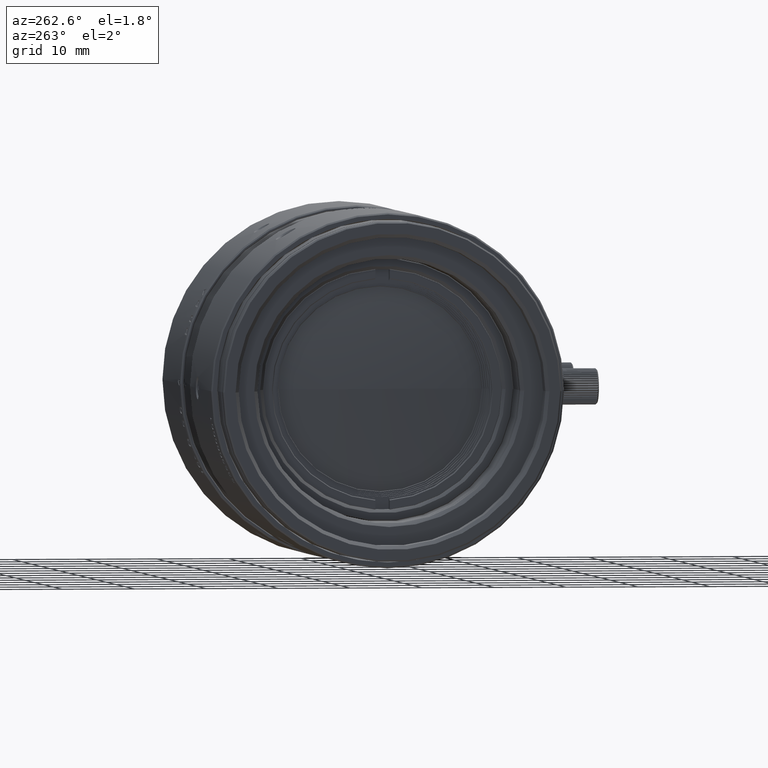
[diagram: clean part render]
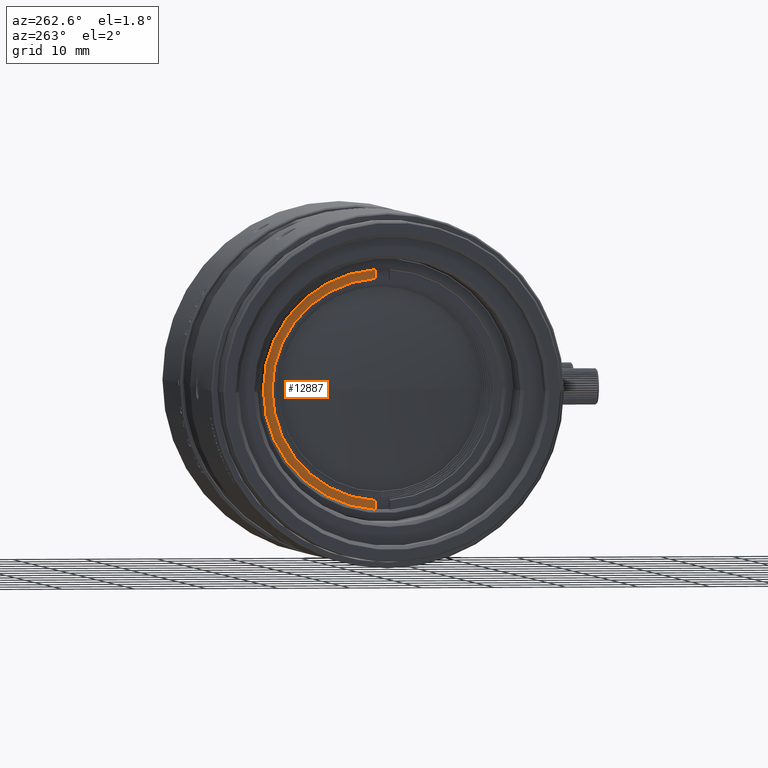
[diagram: same view with one face highlighted and labeled with its STEP entity id]
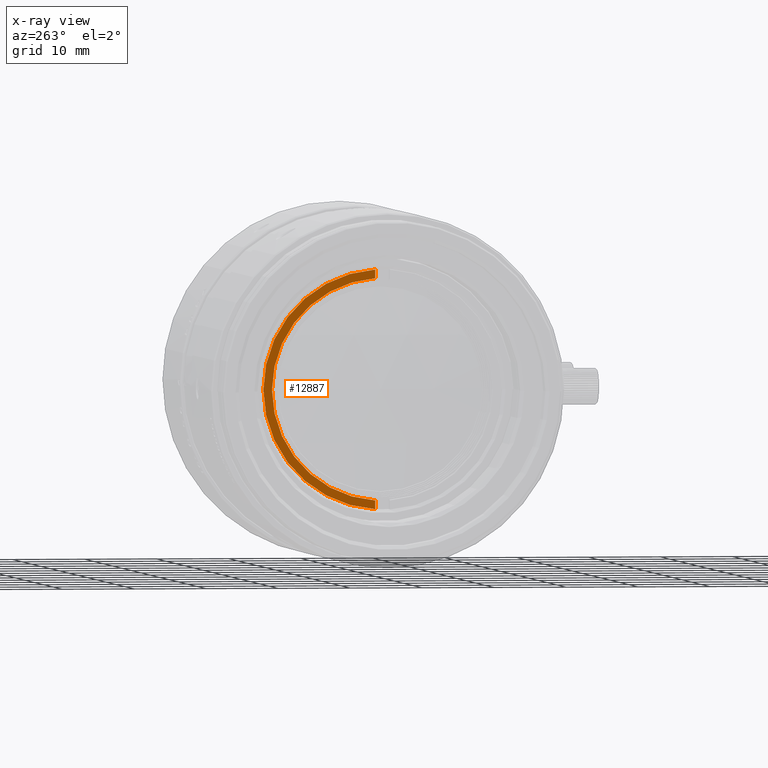
[diagram: x-ray of the same camera — body ghosted, the highlighted face saturated]
A machine part, auxiliary view. The second image highlights one B-rep face of the part: STEP entity #12887.
The next image is the same camera in x-ray: the body ghosted, the highlighted face saturated — about 0% of this face is hidden behind the body in this view.
In plain terms, the highlighted planar face has unit normal (1, 0, 0).
Its self-contained STEP definition (entity closure, byte-faithful):
#3204 = CARTESIAN_POINT ( 'NONE',  ( -57.52165329916999781, 1.001089729118000093, 15.31732081566999959 ) ) ;
#5039 = AXIS2_PLACEMENT_3D ( 'NONE', #22963, #86763, #64304 ) ;
#7644 = EDGE_CURVE ( 'NONE', #38066, #34082, #49822, .T. ) ;
#11689 = CARTESIAN_POINT ( 'NONE',  ( -57.52165329916999781, 1.001089729118000093, -15.31732081566999959 ) ) ;
#12887 = ADVANCED_FACE ( 'NONE', ( #127090 ), #71204, .F. ) ;
#18569 = VERTEX_POINT ( 'NONE', #30086 ) ;
#19714 = DIRECTION ( 'NONE',  ( 2.755432672912310470E-12, 0.06042296072478919866, 0.9981728636950870648 ) ) ;
#22479 = ORIENTED_EDGE ( 'NONE', *, *, #133812, .T. ) ;
#22963 = CARTESIAN_POINT ( 'NONE',  ( -57.52165329892000045, -1.355360260225999861E-12, 0.000000000000000000 ) ) ;
#27260 = EDGE_CURVE ( 'NONE', #34082, #60825, #122736, .T. ) ;
#30053 = CARTESIAN_POINT ( 'NONE',  ( -57.52165329920000403, 1.000363243041360484, -16.11894753460333263 ) ) ;
#30086 = CARTESIAN_POINT ( 'NONE',  ( -57.52165329916999781, 1.001089729118000093, 15.31732081566999959 ) ) ;
#31040 = DIRECTION ( 'NONE',  ( 0.000000000000000000, 1.000000000000000000, 0.000000000000000000 ) ) ;
#34082 = VERTEX_POINT ( 'NONE', #45150 ) ;
#38066 = VERTEX_POINT ( 'NONE', #91031 ) ;
#42853 = ORIENTED_EDGE ( 'NONE', *, *, #59370, .T. ) ;
#44419 = EDGE_LOOP ( 'NONE', ( #106855, #132941, #22479, #42853 ) ) ;
#45150 = CARTESIAN_POINT ( 'NONE',  ( -57.52165329960000406, 0.9999999999952999818, -16.51976089407000003 ) ) ;
#48492 = DIRECTION ( 'NONE',  ( -1.000000000000000000, 4.548847607078450283E-11, 6.910312532343050606E-15 ) ) ;
#49822 = CIRCLE ( 'NONE', #65528, 16.54999999992000070 ) ;
#52747 = CARTESIAN_POINT ( 'NONE',  ( -57.52165329920000403, 8.774996064783000094, 0.000000000000000000 ) ) ;
#59370 = EDGE_CURVE ( 'NONE', #18569, #38066, #69136, .T. ) ;
#60825 = VERTEX_POINT ( 'NONE', #11689 ) ;
#64304 = DIRECTION ( 'NONE',  ( -1.947410745155030797E-12, 0.06514657980463002540, -0.9978757052557993834 ) ) ;
#65528 = AXIS2_PLACEMENT_3D ( 'NONE', #136123, #48492, #19714 ) ;
#69136 = B_SPLINE_CURVE_WITH_KNOTS ( 'NONE', 3,
 ( #3204, #69722, #79562, #122321 ),
 .UNSPECIFIED., .F., .F.,
 ( 4, 4 ),
 ( 0.000000000000000000, 1.000000000000000000 ),
 .UNSPECIFIED. ) ;
#69722 = CARTESIAN_POINT ( 'NONE',  ( -57.52165329920000403, 1.000726486079850375, 15.71813417513666700 ) ) ;
#71204 = PLANE ( 'NONE',  #133403 ) ;
#74456 = CIRCLE ( 'NONE', #5039, 15.34999999994999342 ) ;
#79562 = CARTESIAN_POINT ( 'NONE',  ( -57.52165329920000403, 1.000363243041700212, 16.11894753460333263 ) ) ;
#86763 = DIRECTION ( 'NONE',  ( 1.000000000000000000, 2.990491461834550393E-11, 8.083441880023910688E-16 ) ) ;
#91031 = CARTESIAN_POINT ( 'NONE',  ( -57.52165329960000406, 0.9999999999952000618, 16.51976089407000003 ) ) ;
#94825 = DIRECTION ( 'NONE',  ( 1.000000000000000000, 0.000000000000000000, 0.000000000000000000 ) ) ;
#104349 = CARTESIAN_POINT ( 'NONE',  ( -57.52165329920000403, 1.000726486079600352, -15.71813417513666700 ) ) ;
#106855 = ORIENTED_EDGE ( 'NONE', *, *, #7644, .T. ) ;
#114884 = CARTESIAN_POINT ( 'NONE',  ( -57.52165329916999781, 1.001089729118000093, -15.31732081566999959 ) ) ;
#122321 = CARTESIAN_POINT ( 'NONE',  ( -57.52165329960000406, 0.9999999999952000618, 16.51976089407000003 ) ) ;
#122736 = B_SPLINE_CURVE_WITH_KNOTS ( 'NONE', 3,
 ( #137347, #30053, #104349, #114884 ),
 .UNSPECIFIED., .F., .F.,
 ( 4, 4 ),
 ( 0.000000000000000000, 1.000000000000000000 ),
 .UNSPECIFIED. ) ;
#127090 = FACE_OUTER_BOUND ( 'NONE', #44419, .T. ) ;
#132941 = ORIENTED_EDGE ( 'NONE', *, *, #27260, .T. ) ;
#133403 = AXIS2_PLACEMENT_3D ( 'NONE', #52747, #94825, #31040 ) ;
#133812 = EDGE_CURVE ( 'NONE', #60825, #18569, #74456, .T. ) ;
#136123 = CARTESIAN_POINT ( 'NONE',  ( -57.52165329964999785, 4.879652258297001005E-12, 0.000000000000000000 ) ) ;
#137347 = CARTESIAN_POINT ( 'NONE',  ( -57.52165329960000406, 0.9999999999952999818, -16.51976089407000003 ) ) ;